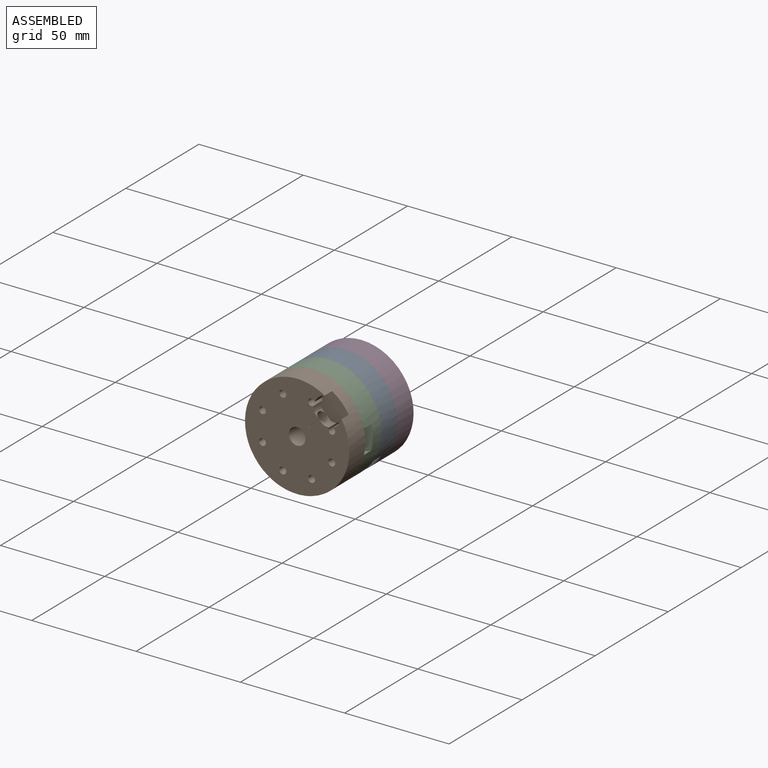
[diagram: assembled view]
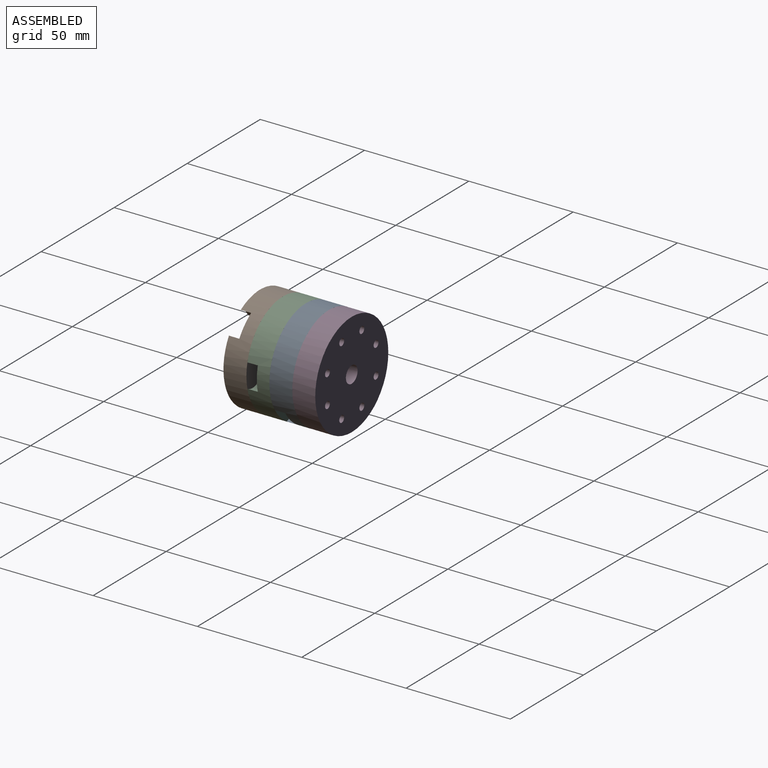
[diagram: assembled view, second angle]
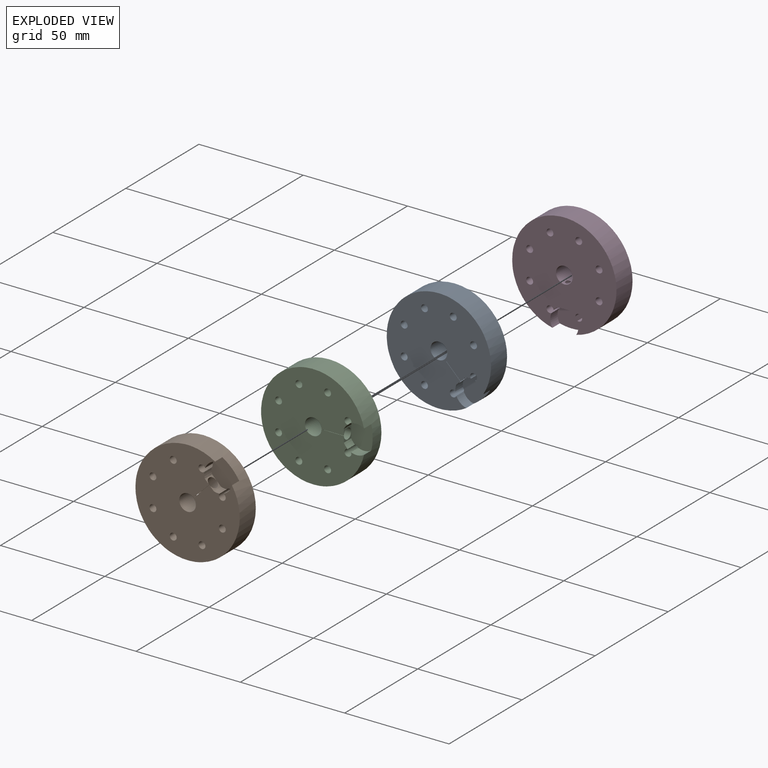
[diagram: exploded view]
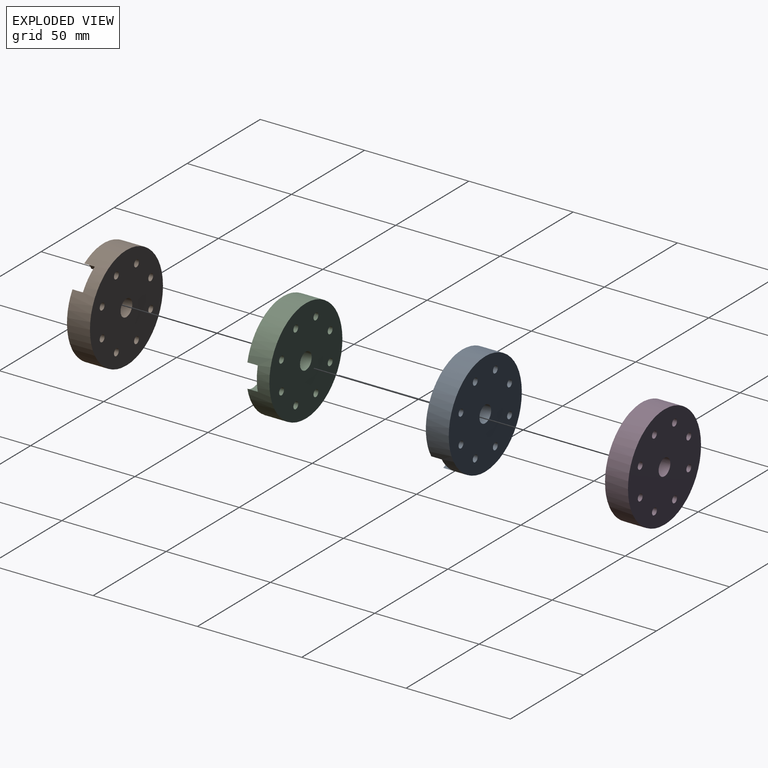
[diagram: exploded view, second angle]
ASSEMBLY  parts=4 mates=3
PART A: 21 faces, bbox 50x11x50 mm
  f0: cylinder r=6.75mm len=5mm, axis (0,-1,0), area 14.5mm2, adj f5,f6,f10,f14
  f1: cylinder r=6.75mm len=6.2mm, axis (0,-1,0), area 32.3mm2, adj f5,f7,f10,f14
  f2: cylinder r=6.75mm len=6.2mm, axis (0,-1,0), area 32.3mm2, adj f5,f7,f10,f13
  f3: cylinder r=6.75mm len=5mm, axis (0,-1,0), area 14.5mm2, adj f5,f9,f10,f13
  f4: cylinder r=4mm len=11mm, axis (0,-1,0), area 272mm2, adj f5,f8,f11
  f5: plane 50.01x49.4mm, normal (0,-1,0), area 1724.3mm2, adj f0,f1,f2,f3,f4,f6,f7,f9
  f6: plane 5x3mm, normal (0,0,-1), area 5.2mm2, adj f0,f5,f10,f12
  f7: cylinder r=25mm len=50mm, axis (0,-1,0), area 1670.1mm2, adj f1,f2,f5,f8,f10
  f8: plane 50x50mm, normal (0,1,0), area 1844.8mm2, adj f4,f7,f13,f14,f15,f16,f17,f18
  f9: plane 5x3mm, normal (0,0,-1), area 5.2mm2, adj f3,f5,f10,f12
  f10: plane 13.5x10.3mm, normal (0,-1,0), area 118.9mm2, adj f0,f1,f2,f3,f6,f7,f9,f13
  f11: cone r=0mm half-angle=59deg, axis (0,0,-1), area 17.7mm2, adj f4,f5,f12
  f12: cylinder r=2.5mm len=10mm, axis (0,0,-1), area 155.7mm2, adj f5,f6,f9,f11
  f13: cylinder r=1.65mm len=11mm, axis (0,1,0), area 103.8mm2, adj f2,f3,f5,f8,f10
  f14: cylinder r=1.65mm len=11mm, axis (0,1,0), area 103.8mm2, adj f0,f1,f5,f8,f10
  f15: cylinder r=1.65mm len=11mm, axis (0,1,0), area 114mm2, adj f5,f8
  f16: cylinder r=1.65mm len=11mm, axis (0,1,0), area 114mm2, adj f5,f8
  f17: cylinder r=1.65mm len=11mm, axis (0,1,0), area 114mm2, adj f5,f8
  f18: cylinder r=1.65mm len=11mm, axis (0,1,0), area 114mm2, adj f5,f8
  f19: cylinder r=1.65mm len=11mm, axis (0,1,0), area 114mm2, adj f5,f8
  f20: cylinder r=1.65mm len=11mm, axis (0,1,0), area 114mm2, adj f5,f8
PART B: same geometry as A
PART C: same geometry as A
PART D: same geometry as A
PLACE A rot(axis=(0,-1,0),45deg) t=(-7.41,-21.82,-9.06)mm
PLACE B rot(axis=(0,-1,0),135deg) t=(-7.41,-43.82,36.91)mm
PLACE C rot(axis=(0,-1,0),90deg) t=(2.11,-32.82,13.92)mm
PLACE D t=(-30.39,-10.82,-18.58)mm
MATE fastened C.f4 <-> A.f4  axis (0,1,0) through (-30.39,-24.32,13.92)mm
MATE fastened A.f4 <-> D.f4  axis (0,1,0) through (-30.39,-13.32,13.92)mm
MATE fastened B.f4 <-> C.f4  axis (0,1,0) through (-30.39,-35.32,13.92)mm
